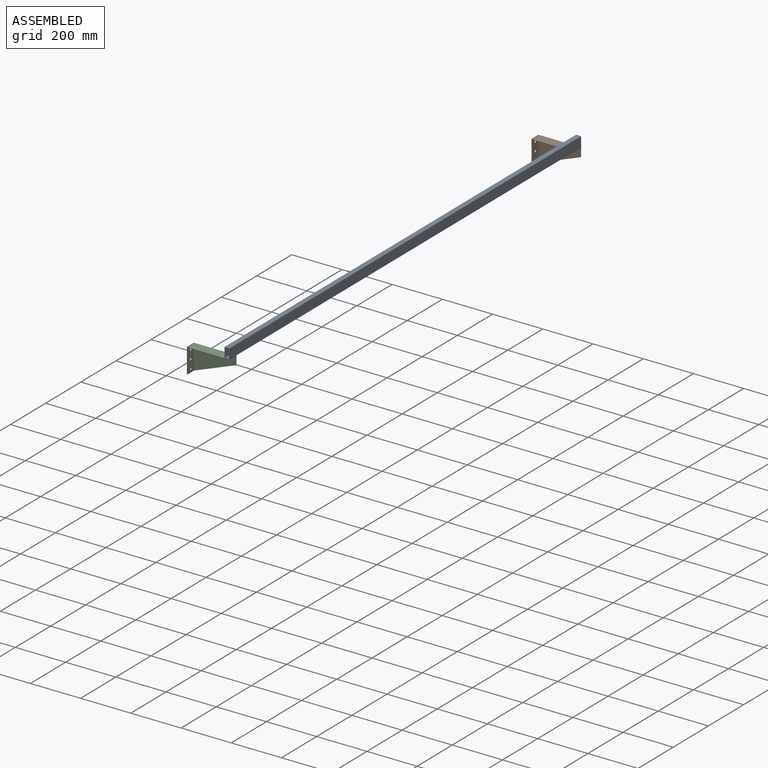
[diagram: assembled view]
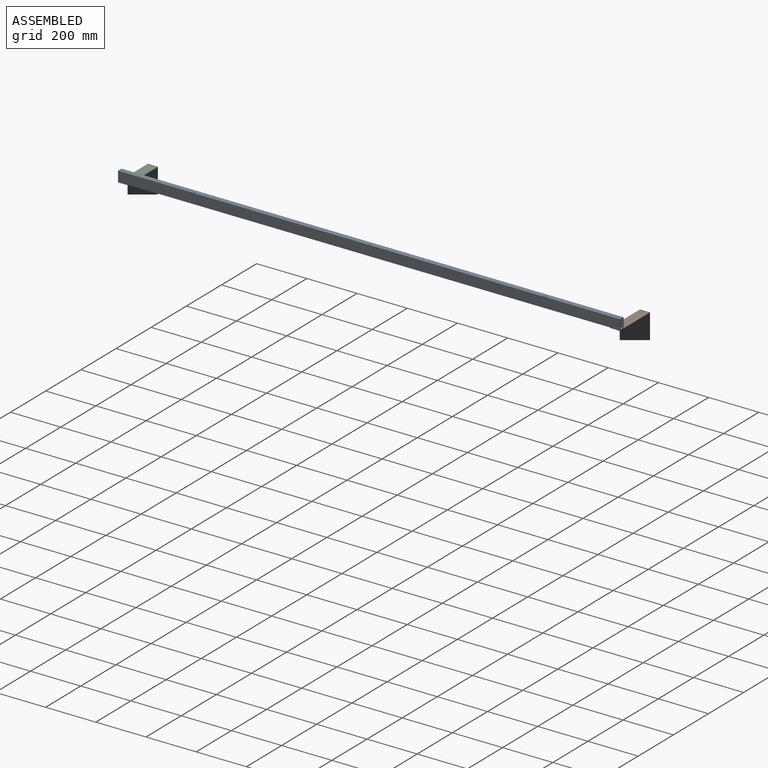
[diagram: assembled view, second angle]
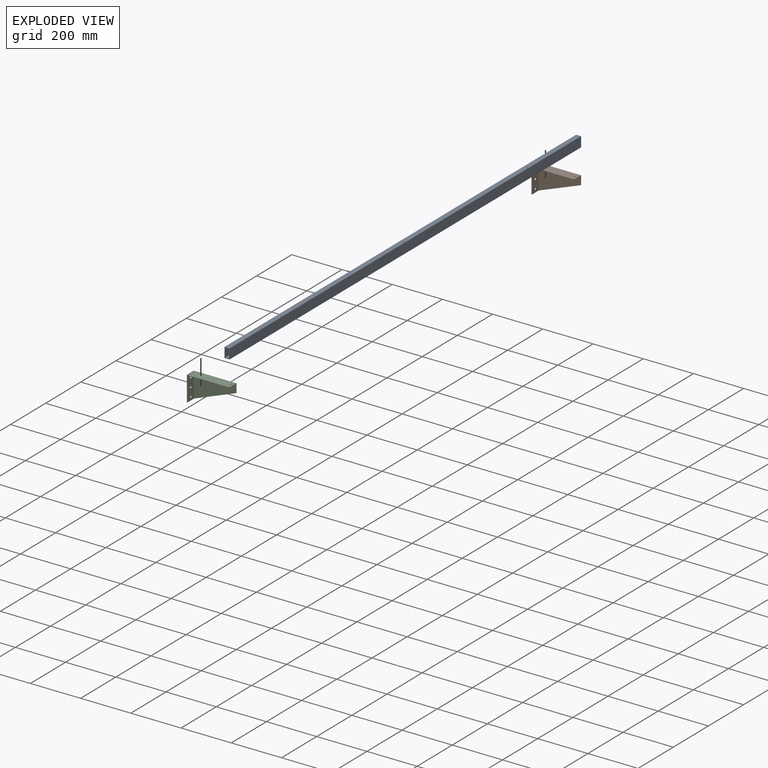
[diagram: exploded view]
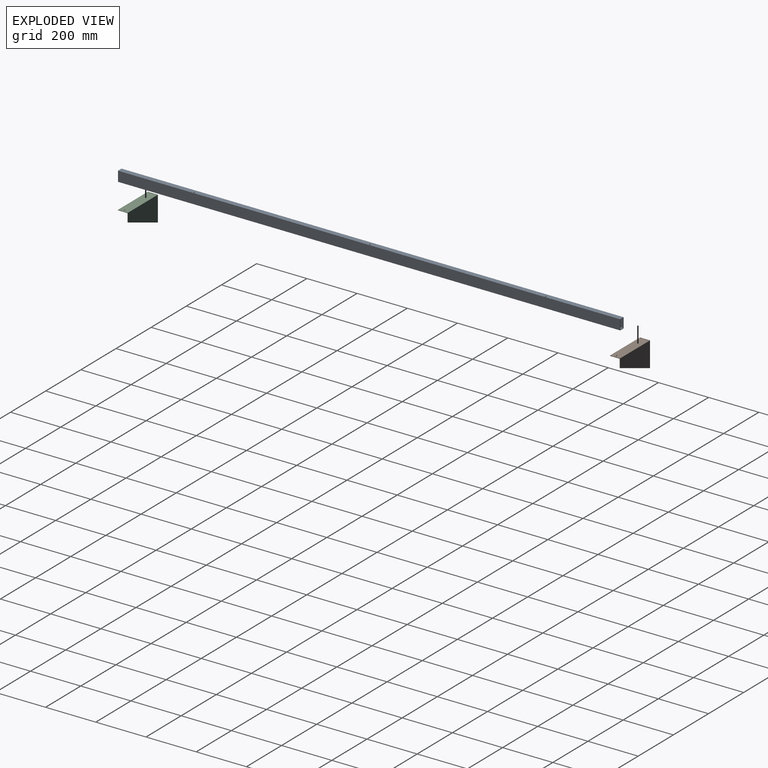
[diagram: exploded view, second angle]
ASSEMBLY  parts=3 mates=2
PART A: 18 faces, bbox 20x2000x40 mm
  f0: plane 2000x40mm, normal (1,0,0), area 80000mm2, adj f1,f3,f4,f5
  f1: plane 2000x20mm, normal (0,0,1), area 39941.1mm2, adj f0,f2,f4,f5,f12,f13,f14
  f2: plane 2000x40mm, normal (-1,0,0), area 80000mm2, adj f1,f3,f4,f5
  f3: plane 2000x20mm, normal (0,0,-1), area 39884.5mm2, adj f0,f2,f4,f5,f10,f11,f15,f16
  f4: plane 40x20mm, normal (0,-1,0), area 224mm2, adj f0,f1,f2,f3,f6,f7,f8,f9
  f5: plane 40x20mm, normal (0,1,0), area 224mm2, adj f0,f1,f2,f3,f6,f7,f8,f9
  f6: plane 2000x16mm, normal (0,0,1), area 31884.5mm2, adj f4,f5,f7,f9,f10,f11,f15,f16
  f7: plane 2000x36mm, normal (-1,0,0), area 72000mm2, adj f4,f5,f6,f8
  f8: plane 2000x16mm, normal (0,0,-1), area 31941.1mm2, adj f4,f5,f7,f9,f12,f13,f14
  f9: plane 2000x36mm, normal (1,0,0), area 72000mm2, adj f4,f5,f6,f8
  f10: cylinder r=3mm len=6mm, axis (0,0,-1), area 37.7mm2, adj f3,f6
  f11: cylinder r=3mm len=6mm, axis (0,0,-1), area 37.7mm2, adj f3,f6
  f12: cylinder r=2.5mm len=5mm, axis (0,0,1), area 31.4mm2, adj f1,f8
  f13: cylinder r=2.5mm len=5mm, axis (0,0,1), area 31.4mm2, adj f1,f8
  f14: cylinder r=2.5mm len=5mm, axis (0,0,1), area 31.4mm2, adj f1,f8
  f15: cylinder r=2.5mm len=5mm, axis (0,0,1), area 31.4mm2, adj f3,f6
  f16: cylinder r=2.5mm len=5mm, axis (0,0,1), area 31.4mm2, adj f3,f6
  f17: cylinder r=2.5mm len=5mm, axis (0,0,1), area 31.4mm2, adj f3,f6
PART B: 17 faces, bbox 170x40x100 mm
  f0: plane 100x2mm, normal (0,-1,0), area 199.2mm2, adj f2,f5,f6,f9
  f1: plane 166x40mm, normal (0,0,1), area 6611.7mm2, adj f3,f4,f7,f14,f16
  f2: plane 170x65mm, normal (0.36,0,-0.93), area 445.4mm2, adj f0,f3,f6,f7,f9,f10
  f3: plane 40x35mm, normal (1,0,0), area 146mm2, adj f1,f2,f4,f7,f8,f10
  f4: plane 166x2mm, normal (0,-1,0), area 332mm2, adj f1,f3,f8,f16
  f5: plane 40x2mm, normal (0,0,1), area 80mm2, adj f0,f6,f7,f9
  f6: plane 100x40mm, normal (-1,0,0), area 3849.2mm2, adj f0,f2,f5,f7,f11,f12,f13
  f7: plane 170x100mm, normal (0,1,0), area 11471mm2, adj f1,f2,f3,f5,f6,f9,f15,f16
  f8: plane 166x38mm, normal (0,0,-1), area 6279.7mm2, adj f3,f4,f10,f14,f16
  f9: plane 99.24x40mm, normal (1,0,0), area 3624.1mm2, adj f0,f2,f5,f7,f10,f11,f12,f13
  f10: plane 168x97.24mm, normal (0,-1,0), area 10939.8mm2, adj f2,f3,f8,f9,f15
  f11: cylinder r=4mm len=8mm, axis (-1,0,0), area 50.3mm2, adj f6,f9
  f12: cylinder r=4mm len=8mm, axis (-1,0,0), area 50.3mm2, adj f6,f9
  f13: cylinder r=4mm len=8mm, axis (-1,0,0), area 50.3mm2, adj f6,f9
  f14: cylinder r=3mm len=6mm, axis (0,0,1), area 37.7mm2, adj f1,f8
  f15: plane 2x2mm, normal (0,0,1), area 4mm2, adj f7,f9,f10,f16
  f16: plane 40x2mm, normal (-1,0,0), area 80mm2, adj f1,f4,f7,f8,f15
PART C: same geometry as B
PLACE A t=(-13.22,965.96,-39.62)mm
PLACE B t=(-173.22,965.96,-59.62)mm
PLACE C t=(-173.22,-994.04,-59.62)mm
MATE planar B.f14 <-> A.f10  axis (0,0,1) through (-13.22,945.96,-59.62)mm
MATE planar C.f14 <-> A.f11  axis (0,0,1) through (-13.22,-1014.04,-59.62)mm
